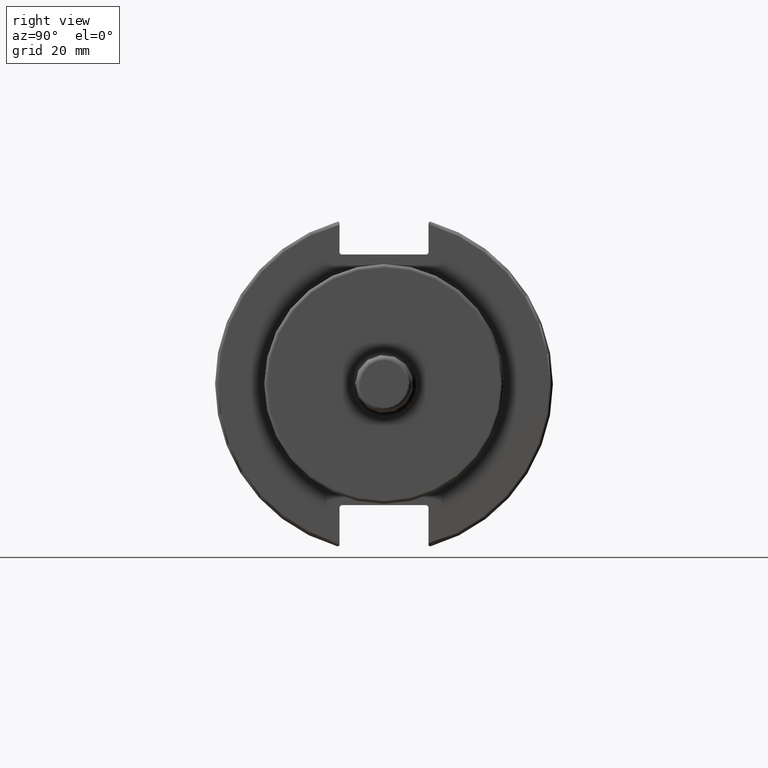
[diagram: clean part render]
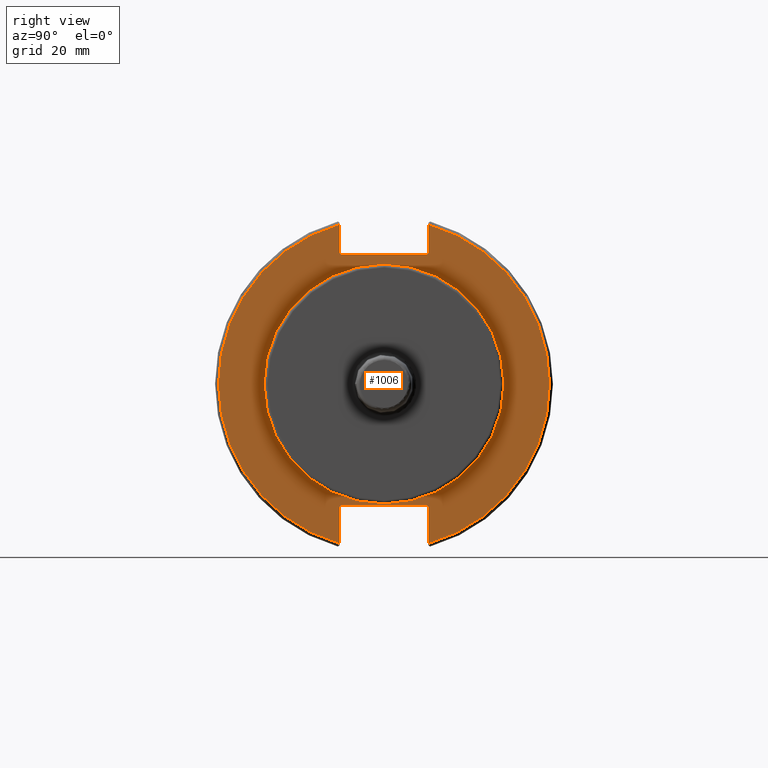
[diagram: same view with one face highlighted and labeled with its STEP entity id]
A machine part, right view. The second image highlights one B-rep face of the part: STEP entity #1006.
In plain terms, the highlighted planar face has unit normal (1, 0, 0).
Its self-contained STEP definition (entity closure, byte-faithful):
#60=FACE_BOUND('',#181,.T.);
#69=PLANE('',#1115);
#118=FACE_OUTER_BOUND('',#180,.T.);
#180=EDGE_LOOP('',(#760,#761,#762,#763,#764,#765,#766,#767,#768,#769,#770,
#771));
#181=EDGE_LOOP('',(#772));
#246=LINE('',#1613,#315);
#252=LINE('',#1639,#321);
#253=LINE('',#1641,#322);
#254=LINE('',#1643,#323);
#255=LINE('',#1645,#324);
#256=LINE('',#1647,#325);
#257=LINE('',#1651,#326);
#258=LINE('',#1653,#327);
#259=LINE('',#1655,#328);
#260=LINE('',#1656,#329);
#315=VECTOR('',#1291,10.);
#321=VECTOR('',#1299,10.);
#322=VECTOR('',#1300,10.);
#323=VECTOR('',#1301,10.);
#324=VECTOR('',#1302,10.);
#325=VECTOR('',#1303,10.);
#326=VECTOR('',#1306,10.);
#327=VECTOR('',#1307,10.);
#328=VECTOR('',#1308,10.);
#329=VECTOR('',#1309,10.);
#366=CIRCLE('',#1074,34.925);
#389=CIRCLE('',#1111,48.2125);
#391=CIRCLE('',#1116,48.2125);
#419=VERTEX_POINT('',#1484);
#449=VERTEX_POINT('',#1568);
#450=VERTEX_POINT('',#1575);
#456=VERTEX_POINT('',#1612);
#463=VERTEX_POINT('',#1638);
#464=VERTEX_POINT('',#1640);
#465=VERTEX_POINT('',#1642);
#466=VERTEX_POINT('',#1644);
#467=VERTEX_POINT('',#1646);
#468=VERTEX_POINT('',#1648);
#469=VERTEX_POINT('',#1650);
#470=VERTEX_POINT('',#1652);
#471=VERTEX_POINT('',#1654);
#520=EDGE_CURVE('',#419,#419,#366,.T.);
#560=EDGE_CURVE('',#449,#450,#389,.T.);
#568=EDGE_CURVE('',#456,#450,#246,.T.);
#577=EDGE_CURVE('',#449,#463,#252,.T.);
#578=EDGE_CURVE('',#464,#463,#253,.T.);
#579=EDGE_CURVE('',#464,#465,#254,.T.);
#580=EDGE_CURVE('',#466,#465,#255,.T.);
#581=EDGE_CURVE('',#466,#467,#256,.T.);
#582=EDGE_CURVE('',#468,#467,#391,.T.);
#583=EDGE_CURVE('',#468,#469,#257,.T.);
#584=EDGE_CURVE('',#470,#469,#258,.T.);
#585=EDGE_CURVE('',#470,#471,#259,.T.);
#586=EDGE_CURVE('',#456,#471,#260,.T.);
#760=ORIENTED_EDGE('',*,*,#560,.F.);
#761=ORIENTED_EDGE('',*,*,#577,.T.);
#762=ORIENTED_EDGE('',*,*,#578,.F.);
#763=ORIENTED_EDGE('',*,*,#579,.T.);
#764=ORIENTED_EDGE('',*,*,#580,.F.);
#765=ORIENTED_EDGE('',*,*,#581,.T.);
#766=ORIENTED_EDGE('',*,*,#582,.F.);
#767=ORIENTED_EDGE('',*,*,#583,.T.);
#768=ORIENTED_EDGE('',*,*,#584,.F.);
#769=ORIENTED_EDGE('',*,*,#585,.T.);
#770=ORIENTED_EDGE('',*,*,#586,.F.);
#771=ORIENTED_EDGE('',*,*,#568,.T.);
#772=ORIENTED_EDGE('',*,*,#520,.T.);
#1006=ADVANCED_FACE('',(#118,#60),#69,.T.);
#1074=AXIS2_PLACEMENT_3D('',#1486,#1191,#1192);
#1111=AXIS2_PLACEMENT_3D('',#1576,#1281,#1282);
#1115=AXIS2_PLACEMENT_3D('',#1637,#1297,#1298);
#1116=AXIS2_PLACEMENT_3D('',#1649,#1304,#1305);
#1191=DIRECTION('center_axis',(-1.,0.,0.));
#1192=DIRECTION('ref_axis',(0.,1.,0.));
#1281=DIRECTION('center_axis',(-1.,0.,0.));
#1282=DIRECTION('ref_axis',(0.,1.,-6.12323399573677E-17));
#1291=DIRECTION('',(0.,0.,-1.));
#1297=DIRECTION('center_axis',(1.,0.,0.));
#1298=DIRECTION('ref_axis',(0.,0.,-1.));
#1299=DIRECTION('',(0.,0.,-1.));
#1300=DIRECTION('',(0.,0.707106781186549,0.707106781186546));
#1301=DIRECTION('',(0.,-1.,0.));
#1302=DIRECTION('',(0.,0.707106781186549,-0.707106781186546));
#1303=DIRECTION('',(0.,0.,1.));
#1304=DIRECTION('center_axis',(-1.,0.,0.));
#1305=DIRECTION('ref_axis',(0.,-1.,1.60812264967664E-16));
#1306=DIRECTION('',(0.,0.,1.));
#1307=DIRECTION('',(0.,-0.707106781186549,-0.707106781186546));
#1308=DIRECTION('',(0.,1.,0.));
#1309=DIRECTION('',(0.,-0.707106781186549,0.707106781186546));
#1484=CARTESIAN_POINT('',(19.05,-34.925,-4.27707894602213E-15));
#1486=CARTESIAN_POINT('Origin',(19.05,0.,0.));
#1568=CARTESIAN_POINT('',(19.05,12.95,46.4407434937254));
#1575=CARTESIAN_POINT('',(19.05,12.95,-46.4407434937254));
#1576=CARTESIAN_POINT('Origin',(19.05,0.,0.));
#1612=CARTESIAN_POINT('',(19.05,12.95,-35.806));
#1613=CARTESIAN_POINT('',(19.05,12.95,-17.653));
#1637=CARTESIAN_POINT('Origin',(19.05,0.,0.));
#1638=CARTESIAN_POINT('',(19.05,12.95,38.219));
#1639=CARTESIAN_POINT('',(19.05,12.95,18.8595));
#1640=CARTESIAN_POINT('',(19.05,12.45,37.719));
#1641=CARTESIAN_POINT('',(19.05,0.0327499999999836,25.30175));
#1642=CARTESIAN_POINT('',(19.05,-12.45,37.719));
#1643=CARTESIAN_POINT('',(19.05,0.,37.719));
#1644=CARTESIAN_POINT('',(19.05,-12.95,38.219));
#1645=CARTESIAN_POINT('',(19.05,-0.0327499999999817,25.30175));
#1646=CARTESIAN_POINT('',(19.05,-12.95,46.4407434937254));
#1647=CARTESIAN_POINT('',(19.05,-12.95,18.8595));
#1648=CARTESIAN_POINT('',(19.05,-12.95,-46.4407434937254));
#1649=CARTESIAN_POINT('Origin',(19.05,0.,0.));
#1650=CARTESIAN_POINT('',(19.05,-12.95,-35.806));
#1651=CARTESIAN_POINT('',(19.05,-12.95,-17.653));
#1652=CARTESIAN_POINT('',(19.05,-12.45,-35.306));
#1653=CARTESIAN_POINT('',(19.05,-0.635999999999989,-23.492));
#1654=CARTESIAN_POINT('',(19.05,12.45,-35.306));
#1655=CARTESIAN_POINT('',(19.05,-3.33066907387547E-15,-35.306));
#1656=CARTESIAN_POINT('',(19.05,0.635999999999982,-23.492));